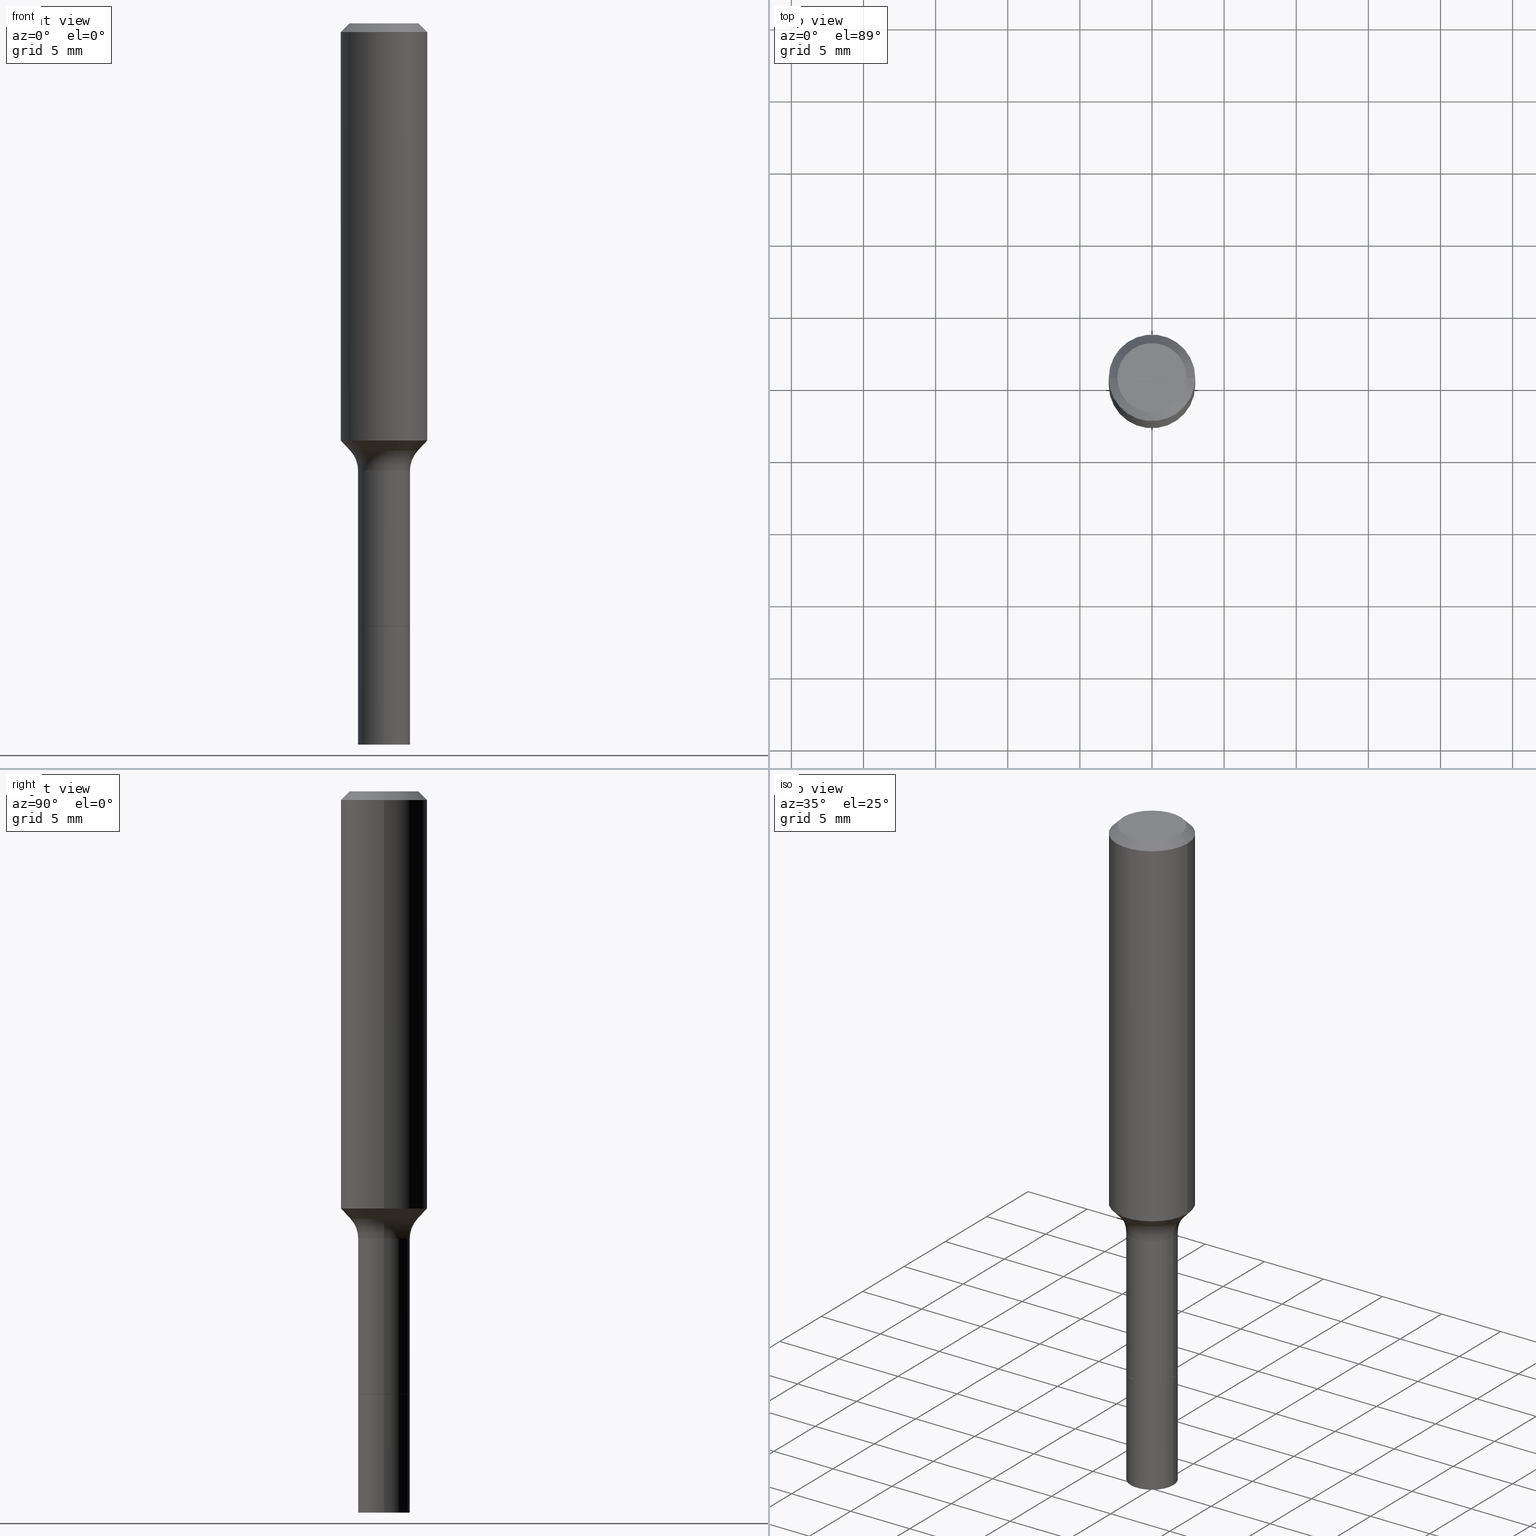
[diagram: canonical four-view strip — front | top / right | iso, engineering-drawing reading convention]
A machine part, canonical four-view strip (front | top / right | iso — engineering-drawing reading convention). The complete STEP part file that produces these views, byte-faithful:
ISO-10303-21;
HEADER;
FILE_DESCRIPTION (( 'STEP AP203' ),
    '1' );
FILE_NAME ('67081.STEP',
    '2025-04-01T15:27:51',
    ( '' ),
    ( '' ),
    'SwSTEP 2.0',
    'SolidWorks 2024',
    '' );
FILE_SCHEMA (( 'CONFIG_CONTROL_DESIGN' ));
ENDSEC;

DATA;
#1 = AXIS2_PLACEMENT_3D ( 'NONE', #162, #113, #68 ) ;
#2 = VERTEX_POINT ( 'NONE', #334 ) ;
#3 = PERSON_AND_ORGANIZATION_ROLE ( 'classification_officer' ) ;
#4 = EDGE_CURVE ( 'NONE', #164, #142, #250, .T. ) ;
#5 = ORIENTED_EDGE ( 'NONE', *, *, #466, .T. ) ;
#6 = ORIENTED_EDGE ( 'NONE', *, *, #39, .F. ) ;
#7 = DIRECTION ( 'NONE',  ( -6.982962677686266711E-15, -1.000000000000000000, 3.491481338843145583E-15 ) ) ;
#8 = ORIENTED_EDGE ( 'NONE', *, *, #489, .F. ) ;
#9 = ORIENTED_EDGE ( 'NONE', *, *, #506, .T. ) ;
#10 = AXIS2_PLACEMENT_3D ( 'NONE', #64, #149, #459 ) ;
#11 = ORIENTED_EDGE ( 'NONE', *, *, #4, .T. ) ;
#12 = AXIS2_PLACEMENT_3D ( 'NONE', #391, #100, #428 ) ;
#13 = VERTEX_POINT ( 'NONE', #202 ) ;
#14 = DIRECTION ( 'NONE',  ( 2.445468806185136597E-29, -3.491481338843145583E-15, -1.000000000000000000 ) ) ;
#15 = DIRECTION ( 'NONE',  ( 0.7071067811864205632, -2.468850131080928224E-15, 0.7071067811866742492 ) ) ;
#16 = EDGE_CURVE ( 'NONE', #175, #33, #513, .T. ) ;
#17 = CARTESIAN_POINT ( 'NONE',  ( 5.776197320209328408E-31, -8.246878922347560526E-17, -0.02362000000000014435 ) ) ;
#18 = CARTESIAN_POINT ( 'NONE',  ( -0.09234170387046626571, -3.414730941346970530E-15, -1.165940131195000173 ) ) ;
#19 = DIRECTION ( 'NONE',  ( 1.000000000000000000, -6.982962677686265133E-15, 0.000000000000000000 ) ) ;
#20 = DIRECTION ( 'NONE',  ( 1.000000000000000000, -6.982962677686269077E-15, 0.000000000000000000 ) ) ;
#21 = AXIS2_PLACEMENT_3D ( 'NONE', #507, #378, #20 ) ;
#22 = ORIENTED_EDGE ( 'NONE', *, *, #393, .F. ) ;
#23 = AXIS2_PLACEMENT_3D ( 'NONE', #500, #183, #293 ) ;
#24 = DIRECTION ( 'NONE',  ( 1.000000000000000000, -6.982962677686267499E-15, 4.875432709231658792E-29 ) ) ;
#25 = ADVANCED_FACE ( 'NONE', ( #346 ), #130, .T. ) ;
#26 = DESIGN_CONTEXT ( 'detailed design', #122, 'design' ) ;
#27 = DIRECTION ( 'NONE',  ( -2.445468806185136597E-29, 3.491481338843145583E-15, 1.000000000000000000 ) ) ;
#28 = FACE_OUTER_BOUND ( 'NONE', #217, .T. ) ;
#29 = CIRCLE ( 'NONE', #167, 0.08000000000000000167 ) ;
#30 = ORIENTED_EDGE ( 'NONE', *, *, #265, .T. ) ;
#31 = PERSON_AND_ORGANIZATION_ROLE ( 'design_supplier' ) ;
#32 = DIRECTION ( 'NONE',  ( 1.000000000000000000, -6.982962677686269077E-15, 0.000000000000000000 ) ) ;
#33 = VERTEX_POINT ( 'NONE', #511 ) ;
#34 = ADVANCED_FACE ( 'NONE', ( #57 ), #272, .T. ) ;
#35 = ORIENTED_EDGE ( 'NONE', *, *, #309, .F. ) ;
#36 = AXIS2_PLACEMENT_3D ( 'NONE', #469, #339, #152 ) ;
#37 = CIRCLE ( 'NONE', #344, 0.07084999999999999631 ) ;
#38 = EDGE_CURVE ( 'NONE', #251, #95, #65, .T. ) ;
#39 = EDGE_CURVE ( 'NONE', #246, #273, #336, .T. ) ;
#40 = ORIENTED_EDGE ( 'NONE', *, *, #309, .T. ) ;
#41 = ORIENTED_EDGE ( 'NONE', *, *, #158, .T. ) ;
#42 = APPLICATION_PROTOCOL_DEFINITION ( 'international standard', 'config_control_design', 1994, #283 ) ;
#43 = CYLINDRICAL_SURFACE ( 'NONE', #257, 0.1181000000000000660 ) ;
#44 = VERTEX_POINT ( 'NONE', #297 ) ;
#45 = PERSON_AND_ORGANIZATION ( #327, #488 ) ;
#46 = CONICAL_SURFACE ( 'NONE', #422, 0.07034999999999999587, 0.7853981633972689780 ) ;
#47 = CARTESIAN_POINT ( 'NONE',  ( 0.07034999999999999587, -6.236483967441625474E-15, -1.645500000000000185 ) ) ;
#48 = ORIENTED_EDGE ( 'NONE', *, *, #133, .F. ) ;
#49 = VERTEX_POINT ( 'NONE', #458 ) ;
#50 = CIRCLE ( 'NONE', #234, 0.07034999999999999587 ) ;
#51 = CARTESIAN_POINT ( 'NONE',  ( 2.984694677948959472E-29, -4.261352974058059028E-15, -1.220499999999999918 ) ) ;
#52 = MANIFOLD_SOLID_BREP ( 'Body-Move/Copy2[1]', #188 ) ;
#53 = EDGE_CURVE ( 'NONE', #175, #164, #76, .T. ) ;
#54 = CARTESIAN_POINT ( 'NONE',  ( 0.09447999999999998066, -7.704367267948738690E-16, -3.085620075131172158E-17 ) ) ;
#55 = TOROIDAL_SURFACE ( 'NONE', #213, 0.1508499999999999563, 0.08000000000000000167 ) ;
#56 = ADVANCED_FACE ( 'NONE', ( #222 ), #199, .F. ) ;
#57 = FACE_OUTER_BOUND ( 'NONE', #363, .T. ) ;
#58 = DIRECTION ( 'NONE',  ( -2.445468806185136597E-29, 3.491481338843145583E-15, 1.000000000000000000 ) ) ;
#59 = DIRECTION ( 'NONE',  ( 1.000000000000000000, -6.982962677686269866E-15, 0.000000000000000000 ) ) ;
#60 = DIRECTION ( 'NONE',  ( -2.445468806185136877E-29, 3.491481338843145188E-15, 1.000000000000000000 ) ) ;
#61 = DIRECTION ( 'NONE',  ( 1.000000000000000000, -6.982962677686263555E-15, 0.000000000000000000 ) ) ;
#62 = DIRECTION ( 'NONE',  ( 1.000000000000000000, -6.982962677686265133E-15, 0.000000000000000000 ) ) ;
#63 = DIRECTION ( 'NONE',  ( 1.000000000000000000, -6.982962677686263555E-15, 0.000000000000000000 ) ) ;
#64 = CARTESIAN_POINT ( 'NONE',  ( 4.022796186174550060E-29, -5.743486802396973933E-15, -1.645000000000000018 ) ) ;
#65 = CIRCLE ( 'NONE', #94, 0.07085000000000010734 ) ;
#66 = LINE ( 'NONE', #512, #172 ) ;
#67 = FACE_OUTER_BOUND ( 'NONE', #259, .T. ) ;
#68 = DIRECTION ( 'NONE',  ( -1.000000000000000000, 6.982962677686265922E-15, -4.876176775795935793E-29 ) ) ;
#69 = DIRECTION ( 'NONE',  ( -2.445468806185136877E-29, 3.491481338843145188E-15, 1.000000000000000000 ) ) ;
#70 = DIRECTION ( 'NONE',  ( -2.445468806185136597E-29, 3.491481338843145583E-15, 1.000000000000000000 ) ) ;
#71 = ORIENTED_EDGE ( 'NONE', *, *, #279, .F. ) ;
#72 = APPROVAL_ROLE ( '' ) ;
#73 = CARTESIAN_POINT ( 'NONE',  ( 5.776197320209328408E-31, -8.246878922347560526E-17, -0.02362000000000014435 ) ) ;
#74 = EDGE_CURVE ( 'NONE', #249, #2, #256, .T. ) ;
#75 = DIRECTION ( 'NONE',  ( -2.445468806185136597E-29, 3.491481338843145583E-15, 1.000000000000000000 ) ) ;
#76 = CIRCLE ( 'NONE', #338, 0.08000000000000000167 ) ;
#77 = EDGE_LOOP ( 'NONE', ( #484, #398, #446, #316 ) ) ;
#78 = APPROVAL_ROLE ( '' ) ;
#79 = ORIENTED_EDGE ( 'NONE', *, *, #38, .F. ) ;
#80 = AXIS2_PLACEMENT_3D ( 'NONE', #303, #263, #191 ) ;
#81 = EDGE_CURVE ( 'NONE', #2, #273, #395, .T. ) ;
#82 = PRODUCT ( '67081', '67081', '', ( #517 ) ) ;
#83 = EDGE_LOOP ( 'NONE', ( #116, #415 ) ) ;
#84 = AXIS2_PLACEMENT_3D ( 'NONE', #311, #174, #326 ) ;
#85 = FACE_OUTER_BOUND ( 'NONE', #119, .T. ) ;
#86 = EDGE_LOOP ( 'NONE', ( #359, #253, #322, #442 ) ) ;
#87 = PERSON_AND_ORGANIZATION ( #327, #488 ) ;
#88 = ORIENTED_EDGE ( 'NONE', *, *, #159, .T. ) ;
#89 = DATE_AND_TIME ( #305, #195 ) ;
#90 = CIRCLE ( 'NONE', #23, 0.07085000000000010734 ) ;
#91 = DIRECTION ( 'NONE',  ( 1.000000000000000000, -6.982962677686266711E-15, 4.876176775795936353E-29 ) ) ;
#92 = ADVANCED_FACE ( 'NONE', ( #294 ), #46, .T. ) ;
#93 = ORIENTED_EDGE ( 'NONE', *, *, #402, .T. ) ;
#94 = AXIS2_PLACEMENT_3D ( 'NONE', #118, #454, #432 ) ;
#95 = VERTEX_POINT ( 'NONE', #224 ) ;
#96 = DIRECTION ( 'NONE',  ( -2.445468806185136597E-29, 3.491481338843145583E-15, 1.000000000000000000 ) ) ;
#97 = ADVANCED_FACE ( 'NONE', ( #376 ), #509, .T. ) ;
#98 = CC_DESIGN_PERSON_AND_ORGANIZATION_ASSIGNMENT ( #87, #426, ( #232 ) ) ;
#99 = CARTESIAN_POINT ( 'NONE',  ( 5.776197320209328408E-31, -8.246878922347560526E-17, -0.02362000000000014435 ) ) ;
#100 = DIRECTION ( 'NONE',  ( 2.438088387897960049E-29, -3.491481338843145188E-15, -1.000000000000000000 ) ) ;
#101 = DIRECTION ( 'NONE',  ( 7.105427357601001859E-15, 1.000000000000000000, -3.491481338843145583E-15 ) ) ;
#102 = CONICAL_SURFACE ( 'NONE', #437, 0.09234170387046626571, 0.7504915783575625277 ) ;
#103 = DIRECTION ( 'NONE',  ( -2.445468806185136597E-29, 3.491481338843145583E-15, 1.000000000000000000 ) ) ;
#104 = DIRECTION ( 'NONE',  ( -2.445468806185136597E-29, 3.491481338843145583E-15, 1.000000000000000000 ) ) ;
#105 = LINE ( 'NONE', #108, #210 ) ;
#106 = FACE_OUTER_BOUND ( 'NONE', #495, .T. ) ;
#107 = CARTESIAN_POINT ( 'NONE',  ( 4.024018920577642301E-29, -5.745232543066395437E-15, -1.645499999999999963 ) ) ;
#108 = CARTESIAN_POINT ( 'NONE',  ( -0.1181000000000000660, 8.391509709326787887E-16, -5.809262341591047287E-30 ) ) ;
#109 = CIRCLE ( 'NONE', #127, 0.09447999999999998066 ) ;
#110 = DIRECTION ( 'NONE',  ( -2.438088387897960049E-29, 3.491481338843145188E-15, 1.000000000000000000 ) ) ;
#111 = DIRECTION ( 'NONE',  ( -1.000000000000000000, 6.982962677686266711E-15, 0.000000000000000000 ) ) ;
#112 = AXIS2_PLACEMENT_3D ( 'NONE', #17, #14, #111 ) ;
#113 = DIRECTION ( 'NONE',  ( 2.438088387897960049E-29, -3.491481338843145188E-15, -1.000000000000000000 ) ) ;
#114 = CARTESIAN_POINT ( 'NONE',  ( 0.07084999999999995468, -4.947429057140717622E-16, 3.454771245651418508E-30 ) ) ;
#115 = CYLINDRICAL_SURFACE ( 'NONE', #448, 0.1181000000000000660 ) ;
#116 = ORIENTED_EDGE ( 'NONE', *, *, #409, .T. ) ;
#117 = DIRECTION ( 'NONE',  ( 1.000000000000000000, 0.000000000000000000, 0.000000000000000000 ) ) ;
#118 = CARTESIAN_POINT ( 'NONE',  ( 4.813905344975441835E-29, -6.872981015512731707E-15, -1.968500000000000139 ) ) ;
#119 = EDGE_LOOP ( 'NONE', ( #79, #407 ) ) ;
#120 = APPLICATION_PROTOCOL_DEFINITION ( 'international standard', 'config_control_design', 1994, #122 ) ;
#121 = CC_DESIGN_PERSON_AND_ORGANIZATION_ASSIGNMENT ( #165, #3, ( #325 ) ) ;
#122 = APPLICATION_CONTEXT ( 'configuration controlled 3d designs of mechanical parts and assemblies' ) ;
#123 = VECTOR ( 'NONE', #60, 39.37007874015748143 ) ;
#124 = APPROVAL_STATUS ( 'not_yet_approved' ) ;
#125 = AXIS2_PLACEMENT_3D ( 'NONE', #258, #505, #455 ) ;
#126 = ADVANCED_FACE ( 'NONE', ( #106 ), #405, .F. ) ;
#127 = AXIS2_PLACEMENT_3D ( 'NONE', #414, #58, #24 ) ;
#128 = SHAPE_DEFINITION_REPRESENTATION ( #408, #450 ) ;
#129 = ORIENTED_EDGE ( 'NONE', *, *, #53, .F. ) ;
#130 = CONICAL_SURFACE ( 'NONE', #413, 0.1180999999999999966, 0.7853981633974461696 ) ;
#131 = ORIENTED_EDGE ( 'NONE', *, *, #4, .F. ) ;
#132 = LENGTH_MEASURE_WITH_UNIT ( LENGTH_MEASURE( 0.02539999999999999897 ), #480 );
#133 = EDGE_CURVE ( 'NONE', #246, #249, #190, .T. ) ;
#134 = ORIENTED_EDGE ( 'NONE', *, *, #518, .F. ) ;
#135 = CC_DESIGN_DATE_AND_TIME_ASSIGNMENT ( #474, #168, ( #325 ) ) ;
#136 = ORIENTED_EDGE ( 'NONE', *, *, #468, .F. ) ;
#137 = AXIS2_PLACEMENT_3D ( 'NONE', #184, #147, #62 ) ;
#138 = ADVANCED_FACE ( 'NONE', ( #235 ), #233, .T. ) ;
#139 = ORIENTED_EDGE ( 'NONE', *, *, #38, .T. ) ;
#140 = EDGE_CURVE ( 'NONE', #251, #49, #264, .T. ) ;
#141 = CARTESIAN_POINT ( 'NONE',  ( 0.000000000000000000, 0.000000000000000000, 0.000000000000000000 ) ) ;
#142 = VERTEX_POINT ( 'NONE', #337 ) ;
#143 = PRODUCT_RELATED_PRODUCT_CATEGORY ( 'detail', '', ( #82 ) ) ;
#144 = LOCAL_TIME ( 11, 27, 51.00000000000000000, #268 ) ;
#145 = CARTESIAN_POINT ( 'NONE',  ( 2.783720525680578917E-29, -3.974415148288161272E-15, -1.138317740402138289 ) ) ;
#146 = PRODUCT_DEFINITION_FORMATION_WITH_SPECIFIED_SOURCE ( 'ANY', '', #82, .NOT_KNOWN. ) ;
#147 = DIRECTION ( 'NONE',  ( -2.445468806185136597E-29, 3.491481338843145583E-15, 1.000000000000000000 ) ) ;
#148 = CONICAL_SURFACE ( 'NONE', #112, 0.1180999999999999966, 0.7853981633974461696 ) ;
#149 = DIRECTION ( 'NONE',  ( -2.445468806185136597E-29, 3.491481338843145583E-15, 1.000000000000000000 ) ) ;
#150 = DIRECTION ( 'NONE',  ( 1.000000000000000000, -6.982962677686269866E-15, 0.000000000000000000 ) ) ;
#151 = CARTESIAN_POINT ( 'NONE',  ( 4.024018920577642301E-29, -5.745232543066395437E-15, -1.645499999999999963 ) ) ;
#152 = DIRECTION ( 'NONE',  ( 1.000000000000000000, -6.982962677686263555E-15, 0.000000000000000000 ) ) ;
#153 = DIRECTION ( 'NONE',  ( 1.000000000000000000, -6.982962677686263555E-15, 0.000000000000000000 ) ) ;
#154 = DIRECTION ( 'NONE',  ( -2.445468806185136597E-29, 3.491481338843145583E-15, 1.000000000000000000 ) ) ;
#155 = CARTESIAN_POINT ( 'NONE',  ( 5.776197320209328408E-31, -8.246878922347560526E-17, -0.02362000000000014435 ) ) ;
#156 = VECTOR ( 'NONE', #447, 39.37007874015748143 ) ;
#157 = DIRECTION ( 'NONE',  ( 1.000000000000000000, -6.982962677686269866E-15, 0.000000000000000000 ) ) ;
#158 = EDGE_CURVE ( 'NONE', #49, #406, #37, .T. ) ;
#159 = EDGE_CURVE ( 'NONE', #475, #365, #66, .T. ) ;
#160 = PERSON_AND_ORGANIZATION ( #327, #488 ) ;
#161 = DIRECTION ( 'NONE',  ( -2.445468806185136597E-29, 3.491481338843145583E-15, 1.000000000000000000 ) ) ;
#162 = CARTESIAN_POINT ( 'NONE',  ( 4.024018920577642301E-29, -5.745232543066395437E-15, -1.645499999999999963 ) ) ;
#163 =( CONVERSION_BASED_UNIT ( 'INCH', #132 ) LENGTH_UNIT ( ) NAMED_UNIT ( #441 ) );
#164 = VERTEX_POINT ( 'NONE', #341 ) ;
#165 = PERSON_AND_ORGANIZATION ( #327, #488 ) ;
#166 = VECTOR ( 'NONE', #471, 39.37007874015748143 ) ;
#167 = AXIS2_PLACEMENT_3D ( 'NONE', #370, #7, #321 ) ;
#168 = DATE_TIME_ROLE ( 'classification_date' ) ;
#169 = ORIENTED_EDGE ( 'NONE', *, *, #53, .T. ) ;
#170 = CC_DESIGN_APPROVAL ( #196, ( #232 ) ) ;
#171 = ORIENTED_EDGE ( 'NONE', *, *, #499, .T. ) ;
#172 = VECTOR ( 'NONE', #424, 39.37007874015748143 ) ;
#173 = ADVANCED_FACE ( 'NONE', ( #465 ), #229, .F. ) ;
#174 = DIRECTION ( 'NONE',  ( -2.445468806185136597E-29, 3.491481338843145583E-15, 1.000000000000000000 ) ) ;
#175 = VERTEX_POINT ( 'NONE', #508 ) ;
#176 = CARTESIAN_POINT ( 'NONE',  ( 0.000000000000000000, 0.000000000000000000, 0.000000000000000000 ) ) ;
#177 = APPROVAL ( #470, 'UNSPECIFIED' ) ;
#178 = EDGE_LOOP ( 'NONE', ( #139, #242, #438, #207 ) ) ;
#179 = VECTOR ( 'NONE', #69, 39.37007874015748143 ) ;
#180 = ADVANCED_FACE ( 'NONE', ( #304 ), #115, .T. ) ;
#181 = ORIENTED_EDGE ( 'NONE', *, *, #81, .F. ) ;
#182 = ORIENTED_EDGE ( 'NONE', *, *, #364, .T. ) ;
#183 = DIRECTION ( 'NONE',  ( -2.445468806185136597E-29, 3.491481338843145583E-15, 1.000000000000000000 ) ) ;
#184 = CARTESIAN_POINT ( 'NONE',  ( 4.022796186174550060E-29, -5.743486802396973933E-15, -1.645000000000000018 ) ) ;
#185 = DIRECTION ( 'NONE',  ( 0.6819983600624991427, -2.208861293262481719E-15, 0.7313537016191699047 ) ) ;
#186 = CARTESIAN_POINT ( 'NONE',  ( 4.024018920577642862E-29, -5.745232543066396226E-15, -1.645500000000000185 ) ) ;
#187 = CARTESIAN_POINT ( 'NONE',  ( 0.000000000000000000, 0.000000000000000000, 0.000000000000000000 ) ) ;
#188 = CLOSED_SHELL ( 'NONE', ( #386, #226, #189, #173 ) ) ;
#189 = ADVANCED_FACE ( 'NONE', ( #28 ), #377, .T. ) ;
#190 = CIRCLE ( 'NONE', #198, 0.07034999999999999587 ) ;
#191 = DIRECTION ( 'NONE',  ( 1.000000000000000000, -6.982962677686267499E-15, 4.875432709231658792E-29 ) ) ;
#192 = DIRECTION ( 'NONE',  ( -1.000000000000000000, 6.982962677686266711E-15, 0.000000000000000000 ) ) ;
#193 = DIRECTION ( 'NONE',  ( -2.445468806185136877E-29, 3.491481338843145188E-15, 1.000000000000000000 ) ) ;
#194 = LINE ( 'NONE', #114, #401 ) ;
#195 = LOCAL_TIME ( 11, 27, 51.00000000000000000, #443 ) ;
#196 = APPROVAL ( #282, 'UNSPECIFIED' ) ;
#197 = PERSON_AND_ORGANIZATION ( #327, #488 ) ;
#198 = AXIS2_PLACEMENT_3D ( 'NONE', #200, #154, #157 ) ;
#199 = TOROIDAL_SURFACE ( 'NONE', #482, 0.1508499999999999563, 0.08000000000000000167 ) ;
#200 = CARTESIAN_POINT ( 'NONE',  ( 4.024018920577642862E-29, -5.745232543066396226E-15, -1.645500000000000185 ) ) ;
#201 = SECURITY_CLASSIFICATION_LEVEL ( 'unclassified' ) ;
#202 = CARTESIAN_POINT ( 'NONE',  ( 0.09234170387046626571, -4.715676881997094379E-15, -1.165940131195000173 ) ) ;
#203 =( NAMED_UNIT ( * ) PLANE_ANGLE_UNIT ( ) SI_UNIT ( $, .RADIAN. ) );
#204 = CIRCLE ( 'NONE', #10, 0.07084999999999998244 ) ;
#205 = CALENDAR_DATE ( 2025, 1, 4 ) ;
#206 = COORDINATED_UNIVERSAL_TIME_OFFSET ( 5, 0, .BEHIND. ) ;
#207 = ORIENTED_EDGE ( 'NONE', *, *, #140, .F. ) ;
#208 = EDGE_CURVE ( 'NONE', #436, #33, #362, .T. ) ;
#209 = ORIENTED_EDGE ( 'NONE', *, *, #499, .F. ) ;
#210 = VECTOR ( 'NONE', #193, 39.37007874015748143 ) ;
#211 = DIRECTION ( 'NONE',  ( -2.445468806185136597E-29, 3.491481338843145583E-15, 1.000000000000000000 ) ) ;
#212 = EDGE_LOOP ( 'NONE', ( #286, #331, #88, #493 ) ) ;
#213 = AXIS2_PLACEMENT_3D ( 'NONE', #218, #214, #323 ) ;
#214 = DIRECTION ( 'NONE',  ( -2.445468806185136597E-29, 3.491481338843145583E-15, 1.000000000000000000 ) ) ;
#215 = ORIENTED_EDGE ( 'NONE', *, *, #369, .F. ) ;
#216 = EDGE_CURVE ( 'NONE', #406, #49, #481, .T. ) ;
#217 = EDGE_LOOP ( 'NONE', ( #134, #93, #281, #243 ) ) ;
#218 = CARTESIAN_POINT ( 'NONE',  ( 2.984694677948959472E-29, -4.261352974058059028E-15, -1.220499999999999918 ) ) ;
#219 = DIRECTION ( 'NONE',  ( -2.445468806185136597E-29, 3.491481338843145583E-15, 1.000000000000000000 ) ) ;
#220 = AXIS2_PLACEMENT_3D ( 'NONE', #186, #502, #150 ) ;
#221 = CARTESIAN_POINT ( 'NONE',  ( 0.09234170387046626571, -4.715676881997095168E-15, -1.165940131195000173 ) ) ;
#222 = FACE_OUTER_BOUND ( 'NONE', #350, .T. ) ;
#223 = CARTESIAN_POINT ( 'NONE',  ( -0.1180999999999999966, -1.189290997823139379E-15, -0.02362000000000014435 ) ) ;
#224 = CARTESIAN_POINT ( 'NONE',  ( -0.07085000000000010734, -5.805687251003532419E-15, -1.968500000000000139 ) ) ;
#225 = CARTESIAN_POINT ( 'NONE',  ( 0.000000000000000000, 0.000000000000000000, 0.000000000000000000 ) ) ;
#226 = ADVANCED_FACE ( 'NONE', ( #85 ), #514, .T. ) ;
#227 = DIRECTION ( 'NONE',  ( 1.000000000000000000, -6.982962677686266711E-15, 0.000000000000000000 ) ) ;
#228 = DIRECTION ( 'NONE',  ( 2.445468806185136597E-29, -3.491481338843145583E-15, -1.000000000000000000 ) ) ;
#229 = PLANE ( 'NONE',  #1 ) ;
#230 = DIRECTION ( 'NONE',  ( -2.445468806185136597E-29, 3.491481338843145583E-15, 1.000000000000000000 ) ) ;
#231 = DIRECTION ( 'NONE',  ( 1.000000000000000000, -6.982962677686269866E-15, 0.000000000000000000 ) ) ;
#232 = PRODUCT_DEFINITION ( 'UNKNOWN', '', #146, #26 ) ;
#233 = CYLINDRICAL_SURFACE ( 'NONE', #302, 0.07084999999999995468 ) ;
#234 = AXIS2_PLACEMENT_3D ( 'NONE', #298, #267, #231 ) ;
#235 = FACE_OUTER_BOUND ( 'NONE', #277, .T. ) ;
#236 = EDGE_LOOP ( 'NONE', ( #41, #379 ) ) ;
#237 = PERSON_AND_ORGANIZATION ( #327, #488 ) ;
#238 = DIRECTION ( 'NONE',  ( 1.000000000000000000, -6.982962677686267499E-15, 4.876176775795936353E-29 ) ) ;
#239 = AXIS2_PLACEMENT_3D ( 'NONE', #472, #70, #19 ) ;
#240 = CARTESIAN_POINT ( 'NONE',  ( 0.1180999999999999966, -8.926936027602933910E-16, -0.02362000000000014435 ) ) ;
#241 = ORIENTED_EDGE ( 'NONE', *, *, #74, .F. ) ;
#242 = ORIENTED_EDGE ( 'NONE', *, *, #518, .T. ) ;
#243 = ORIENTED_EDGE ( 'NONE', *, *, #216, .F. ) ;
#244 = COORDINATED_UNIVERSAL_TIME_OFFSET ( 5, 0, .BEHIND. ) ;
#245 = EDGE_CURVE ( 'NONE', #175, #13, #381, .T. ) ;
#246 = VERTEX_POINT ( 'NONE', #491 ) ;
#247 = PERSON_AND_ORGANIZATION_ROLE ( 'design_owner' ) ;
#248 = FACE_OUTER_BOUND ( 'NONE', #328, .T. ) ;
#249 = VERTEX_POINT ( 'NONE', #47 ) ;
#250 = CIRCLE ( 'NONE', #456, 0.07084999999999994080 ) ;
#251 = VERTEX_POINT ( 'NONE', #288 ) ;
#252 = CIRCLE ( 'NONE', #21, 0.07084999999999994080 ) ;
#253 = ORIENTED_EDGE ( 'NONE', *, *, #16, .T. ) ;
#254 = CARTESIAN_POINT ( 'NONE',  ( -0.1508499999999999563, -3.189499257163948010E-15, -1.220499999999999918 ) ) ;
#255 = VECTOR ( 'NONE', #185, 39.37007874015748143 ) ;
#256 = LINE ( 'NONE', #374, #354 ) ;
#257 = AXIS2_PLACEMENT_3D ( 'NONE', #141, #211, #91 ) ;
#258 = CARTESIAN_POINT ( 'NONE',  ( 4.024018920577642301E-29, -5.745232543066395437E-15, -1.645499999999999963 ) ) ;
#259 = EDGE_LOOP ( 'NONE', ( #417, #9, #40, #490 ) ) ;
#260 = DIRECTION ( 'NONE',  ( 1.000000000000000000, -6.982962677686266711E-15, 0.000000000000000000 ) ) ;
#261 = ORIENTED_EDGE ( 'NONE', *, *, #39, .T. ) ;
#262 = CIRCLE ( 'NONE', #36, 0.09234170387046626571 ) ;
#263 = DIRECTION ( 'NONE',  ( -2.445468806185136597E-29, 3.491481338843145583E-15, 1.000000000000000000 ) ) ;
#264 = LINE ( 'NONE', #421, #123 ) ;
#265 = EDGE_CURVE ( 'NONE', #273, #164, #444, .T. ) ;
#266 = CIRCLE ( 'NONE', #329, 0.1180999999999999966 ) ;
#267 = DIRECTION ( 'NONE',  ( -2.445468806185136597E-29, 3.491481338843145583E-15, 1.000000000000000000 ) ) ;
#268 = COORDINATED_UNIVERSAL_TIME_OFFSET ( 5, 0, .BEHIND. ) ;
#269 = DIRECTION ( 'NONE',  ( -2.445468806185136597E-29, 3.491481338843145583E-15, 1.000000000000000000 ) ) ;
#270 = ORIENTED_EDGE ( 'NONE', *, *, #369, .T. ) ;
#271 = PERSON_AND_ORGANIZATION ( #327, #488 ) ;
#272 = CYLINDRICAL_SURFACE ( 'NONE', #274, 0.07084999999999995468 ) ;
#273 = VERTEX_POINT ( 'NONE', #494 ) ;
#274 = AXIS2_PLACEMENT_3D ( 'NONE', #452, #161, #238 ) ;
#275 = ADVANCED_FACE ( 'NONE', ( #248 ), #43, .T. ) ;
#276 = DATE_AND_TIME ( #356, #497 ) ;
#277 = EDGE_LOOP ( 'NONE', ( #349, #30, #215, #209 ) ) ;
#278 = ADVANCED_FACE ( 'NONE', ( #290 ), #55, .F. ) ;
#279 = EDGE_CURVE ( 'NONE', #436, #44, #361, .T. ) ;
#280 = AXIS2_PLACEMENT_3D ( 'NONE', #384, #333, #504 ) ;
#281 = ORIENTED_EDGE ( 'NONE', *, *, #140, .T. ) ;
#282 = APPROVAL_STATUS ( 'not_yet_approved' ) ;
#283 = APPLICATION_CONTEXT ( 'configuration controlled 3d designs of mechanical parts and assemblies' ) ;
#284 = ORIENTED_EDGE ( 'NONE', *, *, #245, .F. ) ;
#285 = CARTESIAN_POINT ( 'NONE',  ( -0.07084999999999995468, 5.034195282860306597E-16, -3.485065511445598867E-30 ) ) ;
#286 = ORIENTED_EDGE ( 'NONE', *, *, #506, .F. ) ;
#287 = ORIENTED_EDGE ( 'NONE', *, *, #466, .F. ) ;
#288 = CARTESIAN_POINT ( 'NONE',  ( 0.07085000000000010734, -7.367723921226805540E-15, -1.968500000000000139 ) ) ;
#289 = CARTESIAN_POINT ( 'NONE',  ( -0.07034999999999999587, -5.245365728459166366E-15, -1.645500000000000185 ) ) ;
#290 = FACE_OUTER_BOUND ( 'NONE', #403, .T. ) ;
#291 = ORIENTED_EDGE ( 'NONE', *, *, #427, .T. ) ;
#292 =( GEOMETRIC_REPRESENTATION_CONTEXT ( 3 ) GLOBAL_UNCERTAINTY_ASSIGNED_CONTEXT ( ( #320 ) ) GLOBAL_UNIT_ASSIGNED_CONTEXT ( ( #163, #203, #308 ) ) REPRESENTATION_CONTEXT ( 'NONE', 'WORKASPACE' ) );
#293 = DIRECTION ( 'NONE',  ( 1.000000000000000000, -6.982962677686266711E-15, 0.000000000000000000 ) ) ;
#294 = FACE_OUTER_BOUND ( 'NONE', #324, .T. ) ;
#295 = FACE_OUTER_BOUND ( 'NONE', #178, .T. ) ;
#296 = CIRCLE ( 'NONE', #80, 0.09447999999999998066 ) ;
#297 = CARTESIAN_POINT ( 'NONE',  ( 0.1180999999999999966, -9.071566814582237199E-16, -0.02362000000000014435 ) ) ;
#298 = CARTESIAN_POINT ( 'NONE',  ( 4.024018920577642862E-29, -5.745232543066396226E-15, -1.645500000000000185 ) ) ;
#299 = EDGE_CURVE ( 'NONE', #13, #142, #29, .T. ) ;
#300 = DIRECTION ( 'NONE',  ( -2.445468806185136597E-29, 3.491481338843145583E-15, 1.000000000000000000 ) ) ;
#301 = CARTESIAN_POINT ( 'NONE',  ( -0.07084999999999999631, -5.805687251003533208E-15, -1.645499999999999963 ) ) ;
#302 = AXIS2_PLACEMENT_3D ( 'NONE', #187, #300, #347 ) ;
#303 = CARTESIAN_POINT ( 'NONE',  ( 7.545787641473140628E-46, -1.077338491108201769E-31, -3.085620075131671975E-17 ) ) ;
#304 = FACE_OUTER_BOUND ( 'NONE', #433, .T. ) ;
#305 = CALENDAR_DATE ( 2025, 1, 4 ) ;
#306 = ORIENTED_EDGE ( 'NONE', *, *, #279, .T. ) ;
#307 = ORIENTED_EDGE ( 'NONE', *, *, #133, .T. ) ;
#308 =( NAMED_UNIT ( * ) SI_UNIT ( $, .STERADIAN. ) SOLID_ANGLE_UNIT ( ) );
#309 = EDGE_CURVE ( 'NONE', #44, #365, #266, .T. ) ;
#310 = CIRCLE ( 'NONE', #397, 0.1180999999999999966 ) ;
#311 = CARTESIAN_POINT ( 'NONE',  ( 2.851270220716778580E-29, -4.070858210275671756E-15, -1.165940131195000173 ) ) ;
#312 = PERSON_AND_ORGANIZATION ( #327, #488 ) ;
#313 = CC_DESIGN_PERSON_AND_ORGANIZATION_ASSIGNMENT ( #197, #247, ( #82 ) ) ;
#314 = DIRECTION ( 'NONE',  ( 1.000000000000000000, -6.982962677686263555E-15, 0.000000000000000000 ) ) ;
#315 = APPROVAL_PERSON_ORGANIZATION ( #312, #366, #353 ) ;
#316 = ORIENTED_EDGE ( 'NONE', *, *, #364, .F. ) ;
#317 = DATE_AND_TIME ( #389, #144 ) ;
#318 = VECTOR ( 'NONE', #498, 39.37007874015748854 ) ;
#319 = ORIENTED_EDGE ( 'NONE', *, *, #299, .T. ) ;
#320 = UNCERTAINTY_MEASURE_WITH_UNIT (LENGTH_MEASURE( 1.000000000000000082E-05 ), #163, 'distance_accuracy_value', 'NONE');
#321 = DIRECTION ( 'NONE',  ( 1.000000000000000000, -6.982962677686271444E-15, 0.000000000000000000 ) ) ;
#322 = ORIENTED_EDGE ( 'NONE', *, *, #208, .F. ) ;
#323 = DIRECTION ( 'NONE',  ( 1.000000000000000000, -6.982962677686266711E-15, 4.883557194083112901E-29 ) ) ;
#324 = EDGE_LOOP ( 'NONE', ( #515, #261, #181, #241 ) ) ;
#325 = SECURITY_CLASSIFICATION ( '', '', #201 ) ;
#326 = DIRECTION ( 'NONE',  ( 1.000000000000000000, -6.982962677686263555E-15, 0.000000000000000000 ) ) ;
#327 = PERSON ( 'UNSPECIFIED', 'UNSPECIFIED', 'UNSPECIFIED', ('UNSPECIFIED'), ('UNSPECIFIED'), ('UNSPECIFIED') ) ;
#328 = EDGE_LOOP ( 'NONE', ( #388, #291, #35, #71 ) ) ;
#329 = AXIS2_PLACEMENT_3D ( 'NONE', #99, #342, #227 ) ;
#330 = ADVANCED_FACE ( 'NONE', ( #423 ), #102, .T. ) ;
#331 = ORIENTED_EDGE ( 'NONE', *, *, #409, .F. ) ;
#332 = ADVANCED_FACE ( 'NONE', ( #375 ), #373, .F. ) ;
#333 = DIRECTION ( 'NONE',  ( 2.438088387897960049E-29, -3.491481338843145188E-15, -1.000000000000000000 ) ) ;
#334 = CARTESIAN_POINT ( 'NONE',  ( 0.07084999999999998244, -6.238229708111046188E-15, -1.645000000000000018 ) ) ;
#335 = FACE_OUTER_BOUND ( 'NONE', #77, .T. ) ;
#336 = LINE ( 'NONE', #289, #318 ) ;
#337 = CARTESIAN_POINT ( 'NONE',  ( 0.07084999999999994080, -4.756095879772131283E-15, -1.220499999999999918 ) ) ;
#338 = AXIS2_PLACEMENT_3D ( 'NONE', #254, #101, #410 ) ;
#339 = DIRECTION ( 'NONE',  ( -2.445468806185136597E-29, 3.491481338843145583E-15, 1.000000000000000000 ) ) ;
#340 = DIRECTION ( 'NONE',  ( 1.000000000000000000, -6.982962677686265133E-15, 0.000000000000000000 ) ) ;
#341 = CARTESIAN_POINT ( 'NONE',  ( -0.07084999999999994080, -4.499000359941485328E-15, -1.220499999999999918 ) ) ;
#342 = DIRECTION ( 'NONE',  ( -2.445468806185136597E-29, 3.491481338843145583E-15, 1.000000000000000000 ) ) ;
#343 = DIRECTION ( 'NONE',  ( -2.445468806185136597E-29, 3.491481338843145583E-15, 1.000000000000000000 ) ) ;
#344 = AXIS2_PLACEMENT_3D ( 'NONE', #107, #343, #63 ) ;
#345 = LINE ( 'NONE', #240, #394 ) ;
#346 = FACE_OUTER_BOUND ( 'NONE', #212, .T. ) ;
#347 = DIRECTION ( 'NONE',  ( 1.000000000000000000, -6.982962677686267499E-15, 4.876176775795936353E-29 ) ) ;
#348 = CALENDAR_DATE ( 2025, 1, 4 ) ;
#349 = ORIENTED_EDGE ( 'NONE', *, *, #81, .T. ) ;
#350 = EDGE_LOOP ( 'NONE', ( #129, #136, #319, #270 ) ) ;
#351 = APPROVAL_DATE_TIME ( #392, #177 ) ;
#352 = CC_DESIGN_APPROVAL ( #177, ( #146 ) ) ;
#353 = APPROVAL_ROLE ( '' ) ;
#354 = VECTOR ( 'NONE', #15, 39.37007874015748854 ) ;
#355 = ADVANCED_FACE ( 'NONE', ( #67 ), #148, .T. ) ;
#356 = CALENDAR_DATE ( 2025, 1, 4 ) ;
#357 = ORIENTED_EDGE ( 'NONE', *, *, #74, .T. ) ;
#358 = APPROVAL_PERSON_ORGANIZATION ( #45, #177, #72 ) ;
#359 = ORIENTED_EDGE ( 'NONE', *, *, #468, .T. ) ;
#360 = DIRECTION ( 'NONE',  ( 0.7071067811865460184, -7.319954787623251312E-15, -0.7071067811865490160 ) ) ;
#361 = LINE ( 'NONE', #453, #156 ) ;
#362 = CIRCLE ( 'NONE', #239, 0.1181000000000001354 ) ;
#363 = EDGE_LOOP ( 'NONE', ( #367, #5, #171, #131 ) ) ;
#364 = EDGE_CURVE ( 'NONE', #33, #436, #457, .T. ) ;
#365 = VERTEX_POINT ( 'NONE', #223 ) ;
#366 = APPROVAL ( #124, 'UNSPECIFIED' ) ;
#367 = ORIENTED_EDGE ( 'NONE', *, *, #265, .F. ) ;
#368 = CC_DESIGN_SECURITY_CLASSIFICATION ( #325, ( #146 ) ) ;
#369 = EDGE_CURVE ( 'NONE', #142, #164, #252, .T. ) ;
#370 = CARTESIAN_POINT ( 'NONE',  ( 0.1508499999999999563, -5.314732893987031357E-15, -1.220499999999999918 ) ) ;
#371 = APPROVAL_DATE_TIME ( #276, #366 ) ;
#372 = DIRECTION ( 'NONE',  ( 1.000000000000000000, -6.982962677686266711E-15, 4.883557194083112901E-29 ) ) ;
#373 = PLANE ( 'NONE',  #280 ) ;
#374 = CARTESIAN_POINT ( 'NONE',  ( 0.07034999999999999587, -6.236483967441625474E-15, -1.645500000000000185 ) ) ;
#375 = FACE_OUTER_BOUND ( 'NONE', #83, .T. ) ;
#376 = FACE_OUTER_BOUND ( 'NONE', #449, .T. ) ;
#377 = CYLINDRICAL_SURFACE ( 'NONE', #467, 0.07085000000000005183 ) ;
#378 = DIRECTION ( 'NONE',  ( -2.445468806185136597E-29, 3.491481338843145583E-15, 1.000000000000000000 ) ) ;
#379 = ORIENTED_EDGE ( 'NONE', *, *, #216, .T. ) ;
#380 = DIRECTION ( 'NONE',  ( 1.000000000000000000, -6.982962677686266711E-15, 4.876176775795936353E-29 ) ) ;
#381 = CIRCLE ( 'NONE', #84, 0.09234170387046626571 ) ;
#382 = CC_DESIGN_PERSON_AND_ORGANIZATION_ASSIGNMENT ( #237, #31, ( #146 ) ) ;
#383 = CYLINDRICAL_SURFACE ( 'NONE', #125, 0.07085000000000005183 ) ;
#384 = CARTESIAN_POINT ( 'NONE',  ( 3.772893820736570314E-46, -5.386692455541008845E-32, -1.542810037565835988E-17 ) ) ;
#385 = LINE ( 'NONE', #473, #179 ) ;
#386 = ADVANCED_FACE ( 'NONE', ( #295 ), #383, .T. ) ;
#387 = CARTESIAN_POINT ( 'NONE',  ( 4.024018920577642301E-29, -5.745232543066395437E-15, -1.645499999999999963 ) ) ;
#388 = ORIENTED_EDGE ( 'NONE', *, *, #208, .T. ) ;
#389 = CALENDAR_DATE ( 2025, 1, 4 ) ;
#390 = CARTESIAN_POINT ( 'NONE',  ( 2.984694677948959472E-29, -4.261352974058059028E-15, -1.220499999999999918 ) ) ;
#391 = CARTESIAN_POINT ( 'NONE',  ( 4.813905344975441835E-29, -6.872981015512731707E-15, -1.968500000000000139 ) ) ;
#392 = DATE_AND_TIME ( #348, #478 ) ;
#393 = EDGE_CURVE ( 'NONE', #365, #44, #310, .T. ) ;
#394 = VECTOR ( 'NONE', #360, 39.37007874015748143 ) ;
#395 = CIRCLE ( 'NONE', #137, 0.07084999999999998244 ) ;
#396 = MANIFOLD_SOLID_BREP ( 'Body-Move/Copy2[2]', #476 ) ;
#397 = AXIS2_PLACEMENT_3D ( 'NONE', #155, #230, #260 ) ;
#398 = ORIENTED_EDGE ( 'NONE', *, *, #245, .T. ) ;
#399 = VERTEX_POINT ( 'NONE', #54 ) ;
#400 = DIRECTION ( 'NONE',  ( -2.445468806185136877E-29, 3.491481338843145188E-15, 1.000000000000000000 ) ) ;
#401 = VECTOR ( 'NONE', #400, 39.37007874015748143 ) ;
#402 = EDGE_CURVE ( 'NONE', #95, #251, #90, .T. ) ;
#403 = EDGE_LOOP ( 'NONE', ( #284, #169, #11, #486 ) ) ;
#404 = DATE_TIME_ROLE ( 'creation_date' ) ;
#405 = PLANE ( 'NONE',  #434 ) ;
#406 = VERTEX_POINT ( 'NONE', #301 ) ;
#407 = ORIENTED_EDGE ( 'NONE', *, *, #402, .F. ) ;
#408 = PRODUCT_DEFINITION_SHAPE ( 'NONE', 'NONE',  #232 ) ;
#409 = EDGE_CURVE ( 'NONE', #475, #399, #296, .T. ) ;
#410 = DIRECTION ( 'NONE',  ( -1.000000000000000000, 7.105427357600997914E-15, 0.000000000000000000 ) ) ;
#411 = APPROVAL_PERSON_ORGANIZATION ( #160, #196, #78 ) ;
#412 = LINE ( 'NONE', #221, #255 ) ;
#413 = AXIS2_PLACEMENT_3D ( 'NONE', #73, #228, #192 ) ;
#414 = CARTESIAN_POINT ( 'NONE',  ( 7.545787641473140628E-46, -1.077338491108201769E-31, -3.085620075131671975E-17 ) ) ;
#415 = ORIENTED_EDGE ( 'NONE', *, *, #425, .T. ) ;
#416 = DIRECTION ( 'NONE',  ( -2.445468806185136597E-29, 3.491481338843145583E-15, 1.000000000000000000 ) ) ;
#417 = ORIENTED_EDGE ( 'NONE', *, *, #425, .F. ) ;
#418 = CC_DESIGN_PERSON_AND_ORGANIZATION_ASSIGNMENT ( #271, #431, ( #146 ) ) ;
#419 = AXIS2_PLACEMENT_3D ( 'NONE', #176, #510, #117 ) ;
#420 = CARTESIAN_POINT ( 'NONE',  ( 0.1181000000000001354, -4.799103040522910324E-15, -1.138317740402138289 ) ) ;
#421 = CARTESIAN_POINT ( 'NONE',  ( 0.07085000000000005183, -6.239975448780468481E-15, -1.645499999999999963 ) ) ;
#422 = AXIS2_PLACEMENT_3D ( 'NONE', #460, #104, #59 ) ;
#423 = FACE_OUTER_BOUND ( 'NONE', #86, .T. ) ;
#424 = DIRECTION ( 'NONE',  ( -0.7071067811865460184, 2.468850131082241283E-15, -0.7071067811865490160 ) ) ;
#425 = EDGE_CURVE ( 'NONE', #399, #475, #109, .T. ) ;
#426 = PERSON_AND_ORGANIZATION_ROLE ( 'creator' ) ;
#427 = EDGE_CURVE ( 'NONE', #33, #365, #105, .T. ) ;
#428 = DIRECTION ( 'NONE',  ( -1.000000000000000000, 6.982962677686265922E-15, -4.876176775795935793E-29 ) ) ;
#429 = DIRECTION ( 'NONE',  ( 1.000000000000000000, -6.982962677686272233E-15, 0.000000000000000000 ) ) ;
#430 = CONICAL_SURFACE ( 'NONE', #445, 0.09234170387046626571, 0.7504915783575625277 ) ;
#431 = PERSON_AND_ORGANIZATION_ROLE ( 'creator' ) ;
#432 = DIRECTION ( 'NONE',  ( 1.000000000000000000, -6.982962677686266711E-15, 0.000000000000000000 ) ) ;
#433 = EDGE_LOOP ( 'NONE', ( #479, #182, #306, #22 ) ) ;
#434 = AXIS2_PLACEMENT_3D ( 'NONE', #487, #110, #462 ) ;
#435 = COORDINATED_UNIVERSAL_TIME_OFFSET ( 5, 0, .BEHIND. ) ;
#436 = VERTEX_POINT ( 'NONE', #420 ) ;
#437 = AXIS2_PLACEMENT_3D ( 'NONE', #496, #103, #153 ) ;
#438 = ORIENTED_EDGE ( 'NONE', *, *, #158, .F. ) ;
#439 = APPROVAL_DATE_TIME ( #317, #196 ) ;
#440 = EDGE_CURVE ( 'NONE', #13, #436, #412, .T. ) ;
#441 = DIMENSIONAL_EXPONENTS ( 1.000000000000000000, 0.000000000000000000, 0.000000000000000000, 0.000000000000000000, 0.000000000000000000, 0.000000000000000000, 0.000000000000000000 ) ;
#442 = ORIENTED_EDGE ( 'NONE', *, *, #440, .F. ) ;
#443 = COORDINATED_UNIVERSAL_TIME_OFFSET ( 5, 0, .BEHIND. ) ;
#444 = LINE ( 'NONE', #285, #477 ) ;
#445 = AXIS2_PLACEMENT_3D ( 'NONE', #461, #27, #61 ) ;
#446 = ORIENTED_EDGE ( 'NONE', *, *, #440, .T. ) ;
#447 = DIRECTION ( 'NONE',  ( -2.445468806185136877E-29, 3.491481338843145188E-15, 1.000000000000000000 ) ) ;
#448 = AXIS2_PLACEMENT_3D ( 'NONE', #225, #269, #380 ) ;
#449 = EDGE_LOOP ( 'NONE', ( #6, #307, #357, #287 ) ) ;
#450 = ADVANCED_BREP_SHAPE_REPRESENTATION ( '67081', ( #52, #396, #419 ), #292 ) ;
#451 = ADVANCED_FACE ( 'NONE', ( #335 ), #430, .T. ) ;
#452 = CARTESIAN_POINT ( 'NONE',  ( 0.000000000000000000, 0.000000000000000000, 0.000000000000000000 ) ) ;
#453 = CARTESIAN_POINT ( 'NONE',  ( 0.1181000000000000660, -8.246878922347485584E-16, 5.758764772215003944E-30 ) ) ;
#454 = DIRECTION ( 'NONE',  ( -2.445468806185136597E-29, 3.491481338843145583E-15, 1.000000000000000000 ) ) ;
#455 = DIRECTION ( 'NONE',  ( 1.000000000000000000, -6.982962677686272233E-15, 0.000000000000000000 ) ) ;
#456 = AXIS2_PLACEMENT_3D ( 'NONE', #390, #96, #32 ) ;
#457 = CIRCLE ( 'NONE', #501, 0.1181000000000001354 ) ;
#458 = CARTESIAN_POINT ( 'NONE',  ( 0.07084999999999999631, -6.239975448780467692E-15, -1.645499999999999963 ) ) ;
#459 = DIRECTION ( 'NONE',  ( 1.000000000000000000, -6.982962677686265133E-15, 0.000000000000000000 ) ) ;
#460 = CARTESIAN_POINT ( 'NONE',  ( 4.024018920577642862E-29, -5.745232543066396226E-15, -1.645500000000000185 ) ) ;
#461 = CARTESIAN_POINT ( 'NONE',  ( 2.851270220716778580E-29, -4.070858210275671756E-15, -1.165940131195000173 ) ) ;
#462 = DIRECTION ( 'NONE',  ( 1.000000000000000000, -6.982962677686265922E-15, 4.876176775795935793E-29 ) ) ;
#463 = CC_DESIGN_APPROVAL ( #366, ( #325 ) ) ;
#464 = CARTESIAN_POINT ( 'NONE',  ( -0.09447999999999998066, 7.009847083995354710E-16, -3.085620075132147757E-17 ) ) ;
#465 = FACE_OUTER_BOUND ( 'NONE', #236, .T. ) ;
#466 = EDGE_CURVE ( 'NONE', #273, #2, #204, .T. ) ;
#467 = AXIS2_PLACEMENT_3D ( 'NONE', #387, #503, #429 ) ;
#468 = EDGE_CURVE ( 'NONE', #13, #175, #262, .T. ) ;
#469 = CARTESIAN_POINT ( 'NONE',  ( 2.851270220716778580E-29, -4.070858210275671756E-15, -1.165940131195000173 ) ) ;
#470 = APPROVAL_STATUS ( 'not_yet_approved' ) ;
#471 = DIRECTION ( 'NONE',  ( -0.6819983600624991427, 7.399397606724289732E-15, 0.7313537016191699047 ) ) ;
#472 = CARTESIAN_POINT ( 'NONE',  ( 2.783720525680578917E-29, -3.974415148288161272E-15, -1.138317740402138289 ) ) ;
#473 = CARTESIAN_POINT ( 'NONE',  ( -0.07085000000000005183, -5.241813014780364678E-15, -1.645499999999999963 ) ) ;
#474 = DATE_AND_TIME ( #205, #516 ) ;
#475 = VERTEX_POINT ( 'NONE', #464 ) ;
#476 = CLOSED_SHELL ( 'NONE', ( #92, #355, #275, #330, #278, #138, #34, #56, #451, #180, #25, #332, #126, #97 ) ) ;
#477 = VECTOR ( 'NONE', #483, 39.37007874015748143 ) ;
#478 = LOCAL_TIME ( 11, 27, 51.00000000000000000, #435 ) ;
#479 = ORIENTED_EDGE ( 'NONE', *, *, #427, .F. ) ;
#480 =( LENGTH_UNIT ( ) NAMED_UNIT ( * ) SI_UNIT ( $, .METRE. ) );
#481 = CIRCLE ( 'NONE', #492, 0.07084999999999999631 ) ;
#482 = AXIS2_PLACEMENT_3D ( 'NONE', #51, #219, #372 ) ;
#483 = DIRECTION ( 'NONE',  ( -2.445468806185136877E-29, 3.491481338843145188E-15, 1.000000000000000000 ) ) ;
#484 = ORIENTED_EDGE ( 'NONE', *, *, #16, .F. ) ;
#485 = CC_DESIGN_DATE_AND_TIME_ASSIGNMENT ( #89, #404, ( #232 ) ) ;
#486 = ORIENTED_EDGE ( 'NONE', *, *, #299, .F. ) ;
#487 = CARTESIAN_POINT ( 'NONE',  ( -4.379859112377122122E-30, -1.213507742376937505E-14, -1.645500000000000185 ) ) ;
#488 = ORGANIZATION ( 'UNSPECIFIED', 'UNSPECIFIED', '' ) ;
#489 = EDGE_CURVE ( 'NONE', #249, #246, #50, .T. ) ;
#490 = ORIENTED_EDGE ( 'NONE', *, *, #159, .F. ) ;
#491 = CARTESIAN_POINT ( 'NONE',  ( -0.07034999999999999587, -5.242716501285055165E-15, -1.645500000000000185 ) ) ;
#492 = AXIS2_PLACEMENT_3D ( 'NONE', #151, #75, #314 ) ;
#493 = ORIENTED_EDGE ( 'NONE', *, *, #393, .T. ) ;
#494 = CARTESIAN_POINT ( 'NONE',  ( -0.07084999999999999631, -4.499000359941484539E-15, -1.645000000000000018 ) ) ;
#495 = EDGE_LOOP ( 'NONE', ( #8, #48 ) ) ;
#496 = CARTESIAN_POINT ( 'NONE',  ( 2.851270220716778580E-29, -4.070858210275671756E-15, -1.165940131195000173 ) ) ;
#497 = LOCAL_TIME ( 11, 27, 51.00000000000000000, #206 ) ;
#498 = DIRECTION ( 'NONE',  ( -0.7071067811864205632, 7.493145998869895043E-15, 0.7071067811866742492 ) ) ;
#499 = EDGE_CURVE ( 'NONE', #2, #142, #194, .T. ) ;
#500 = CARTESIAN_POINT ( 'NONE',  ( 4.813905344975441835E-29, -6.872981015512731707E-15, -1.968500000000000139 ) ) ;
#501 = AXIS2_PLACEMENT_3D ( 'NONE', #145, #416, #340 ) ;
#502 = DIRECTION ( 'NONE',  ( -2.445468806185136597E-29, 3.491481338843145583E-15, 1.000000000000000000 ) ) ;
#503 = DIRECTION ( 'NONE',  ( -2.445468806185136597E-29, 3.491481338843145583E-15, 1.000000000000000000 ) ) ;
#504 = DIRECTION ( 'NONE',  ( -1.000000000000000000, 6.982962677686265922E-15, -4.876176775795935793E-29 ) ) ;
#505 = DIRECTION ( 'NONE',  ( -2.445468806185136597E-29, 3.491481338843145583E-15, 1.000000000000000000 ) ) ;
#506 = EDGE_CURVE ( 'NONE', #399, #44, #345, .T. ) ;
#507 = CARTESIAN_POINT ( 'NONE',  ( 2.984694677948959472E-29, -4.261352974058059028E-15, -1.220499999999999918 ) ) ;
#508 = CARTESIAN_POINT ( 'NONE',  ( -0.09234170387046626571, -3.414730941346970530E-15, -1.165940131195000173 ) ) ;
#509 = CONICAL_SURFACE ( 'NONE', #220, 0.07034999999999999587, 0.7853981633972689780 ) ;
#510 = DIRECTION ( 'NONE',  ( 0.000000000000000000, 0.000000000000000000, 1.000000000000000000 ) ) ;
#511 = CARTESIAN_POINT ( 'NONE',  ( -0.1181000000000001354, -3.135264177355482681E-15, -1.138317740402138289 ) ) ;
#512 = CARTESIAN_POINT ( 'NONE',  ( -0.1180999999999999966, 7.422191030112725094E-16, -0.02362000000000014435 ) ) ;
#513 = LINE ( 'NONE', #18, #166 ) ;
#514 = PLANE ( 'NONE',  #12 ) ;
#515 = ORIENTED_EDGE ( 'NONE', *, *, #489, .T. ) ;
#516 = LOCAL_TIME ( 11, 27, 51.00000000000000000, #244 ) ;
#517 = MECHANICAL_CONTEXT ( 'NONE', #283, 'mechanical' ) ;
#518 = EDGE_CURVE ( 'NONE', #95, #406, #385, .T. ) ;
ENDSEC;
END-ISO-10303-21;
